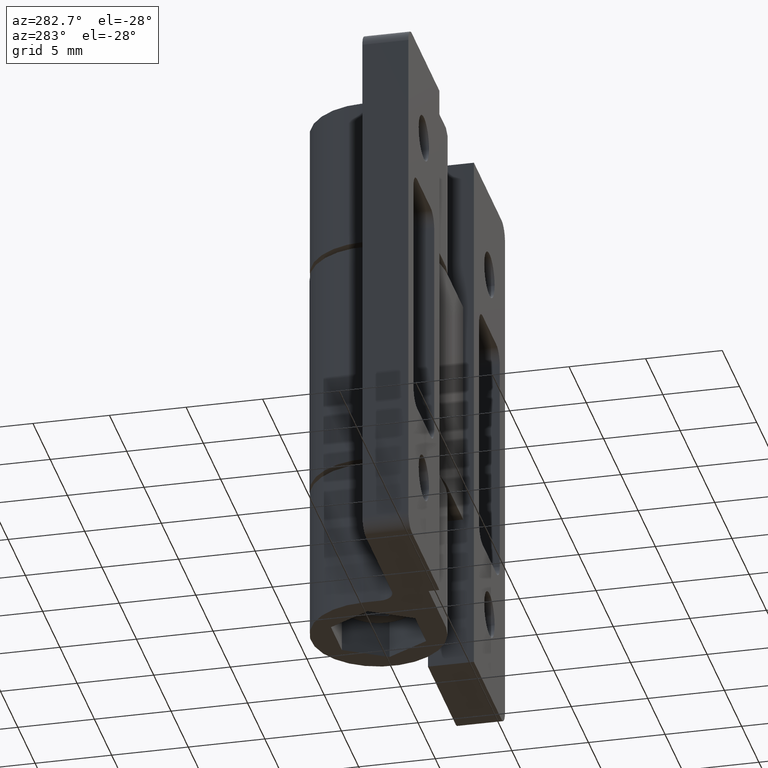
[diagram: clean part render]
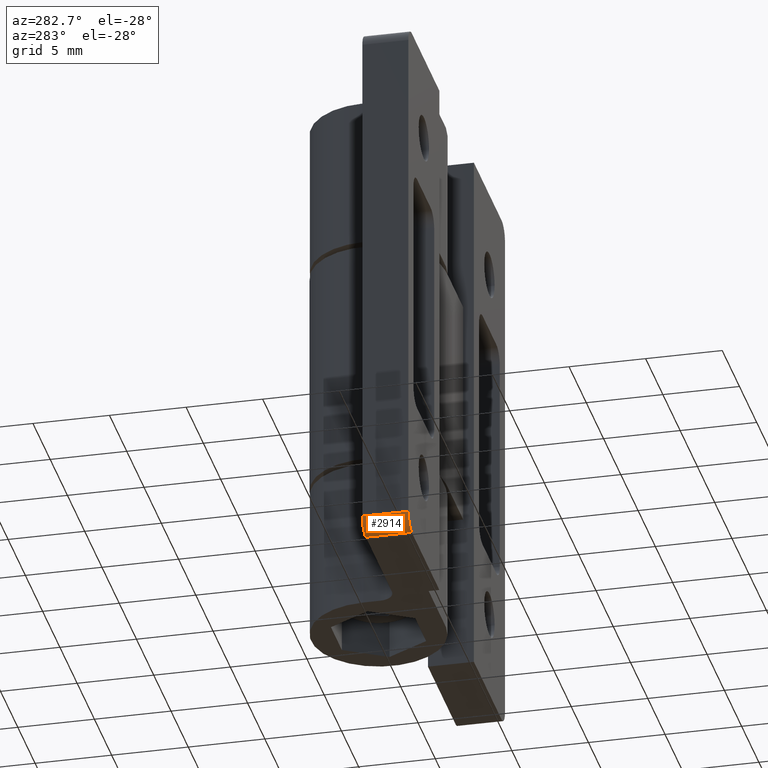
[diagram: same view with one face highlighted and labeled with its STEP entity id]
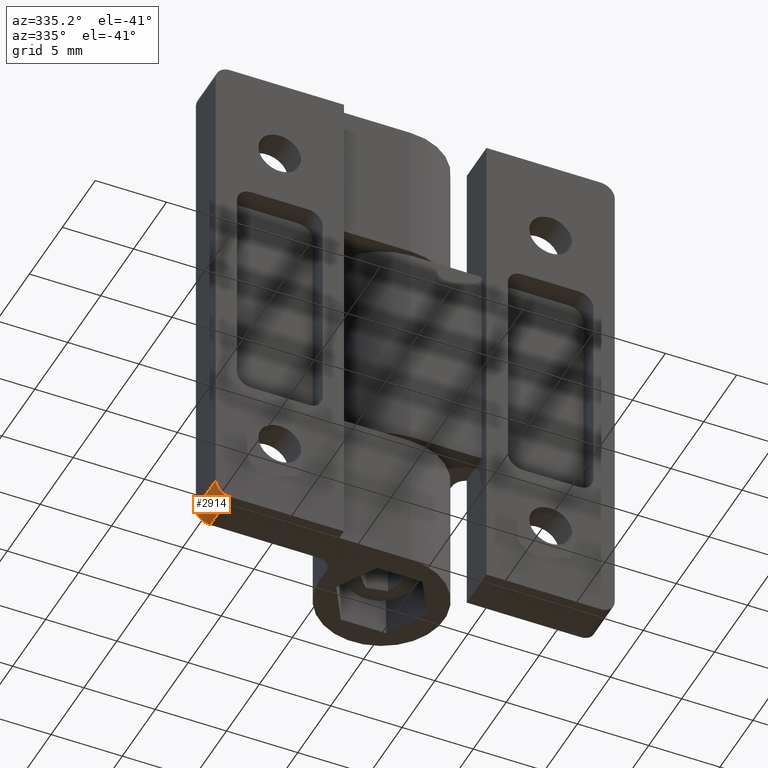
[diagram: same view with one face highlighted and labeled with its STEP entity id]
A machine part, auxiliary view. The second image highlights one B-rep face of the part: STEP entity #2914.
A second angle (auxiliary view) of the same face is appended — the face is thin or edge-on in the first view.
In plain terms, the highlighted cylindrical surface (edge-blend (fillet) strip) has radius 1 mm, axis along (0, 1, 0).
Its self-contained STEP definition (entity closure, byte-faithful):
#410=FACE_OUTER_BOUND('',#520,.T.);
#520=EDGE_LOOP('',(#1928,#1929,#1930,#1931));
#670=LINE('',#3745,#826);
#671=LINE('',#3748,#827);
#826=VECTOR('',#3219,3.);
#827=VECTOR('',#3222,3.);
#982=CIRCLE('',#3030,1.);
#983=CIRCLE('',#3031,1.);
#1054=VERTEX_POINT('',#3741);
#1055=VERTEX_POINT('',#3742);
#1056=VERTEX_POINT('',#3744);
#1057=VERTEX_POINT('',#3746);
#1452=EDGE_CURVE('',#1054,#1055,#982,.T.);
#1453=EDGE_CURVE('',#1055,#1056,#670,.T.);
#1454=EDGE_CURVE('',#1056,#1057,#983,.T.);
#1455=EDGE_CURVE('',#1057,#1054,#671,.T.);
#1928=ORIENTED_EDGE('',*,*,#1452,.T.);
#1929=ORIENTED_EDGE('',*,*,#1453,.T.);
#1930=ORIENTED_EDGE('',*,*,#1454,.T.);
#1931=ORIENTED_EDGE('',*,*,#1455,.T.);
#2880=CYLINDRICAL_SURFACE('',#3029,1.);
#2914=ADVANCED_FACE('',(#410),#2880,.T.);
#3029=AXIS2_PLACEMENT_3D('',#3740,#3215,#3216);
#3030=AXIS2_PLACEMENT_3D('',#3743,#3217,#3218);
#3031=AXIS2_PLACEMENT_3D('',#3747,#3220,#3221);
#3215=DIRECTION('center_axis',(6.12323399573677E-17,0.,1.));
#3216=DIRECTION('ref_axis',(-0.707106781186547,0.707106781186548,4.32978028117747E-17));
#3217=DIRECTION('center_axis',(5.78241158658936E-17,0.,-1.));
#3218=DIRECTION('ref_axis',(-0.707106781186547,0.707106781186548,-4.088782444489E-17));
#3219=DIRECTION('',(-6.12323399573677E-17,0.,-1.));
#3220=DIRECTION('center_axis',(1.71193772834421E-33,0.,1.));
#3221=DIRECTION('ref_axis',(-0.707106781186547,0.707106781186548,1.21052277668128E-33));
#3222=DIRECTION('',(6.12323399573677E-17,0.,1.));
#3740=CARTESIAN_POINT('Origin',(1.,17.,2.375));
#3741=CARTESIAN_POINT('',(1.83697019872103E-16,17.,3.));
#3742=CARTESIAN_POINT('',(1.,18.,3.));
#3743=CARTESIAN_POINT('Origin',(1.,17.,3.));
#3744=CARTESIAN_POINT('',(1.,18.,-1.71193772834421E-33));
#3745=CARTESIAN_POINT('',(1.,18.,2.375));
#3746=CARTESIAN_POINT('',(0.,17.,0.));
#3747=CARTESIAN_POINT('Origin',(1.,17.,5.55111512312578E-16));
#3748=CARTESIAN_POINT('',(1.38777878078145E-16,17.,2.375));